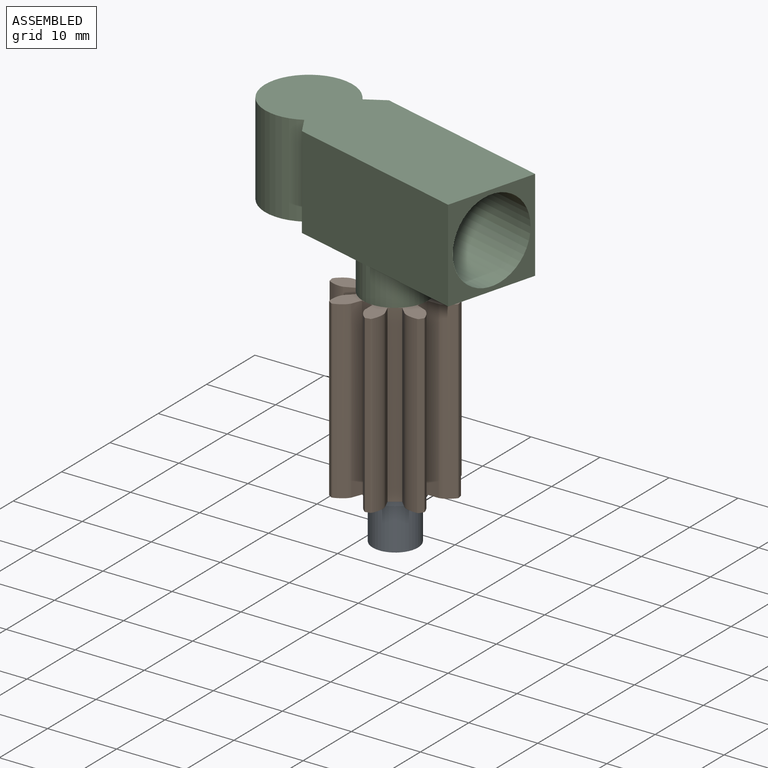
[diagram: assembled view]
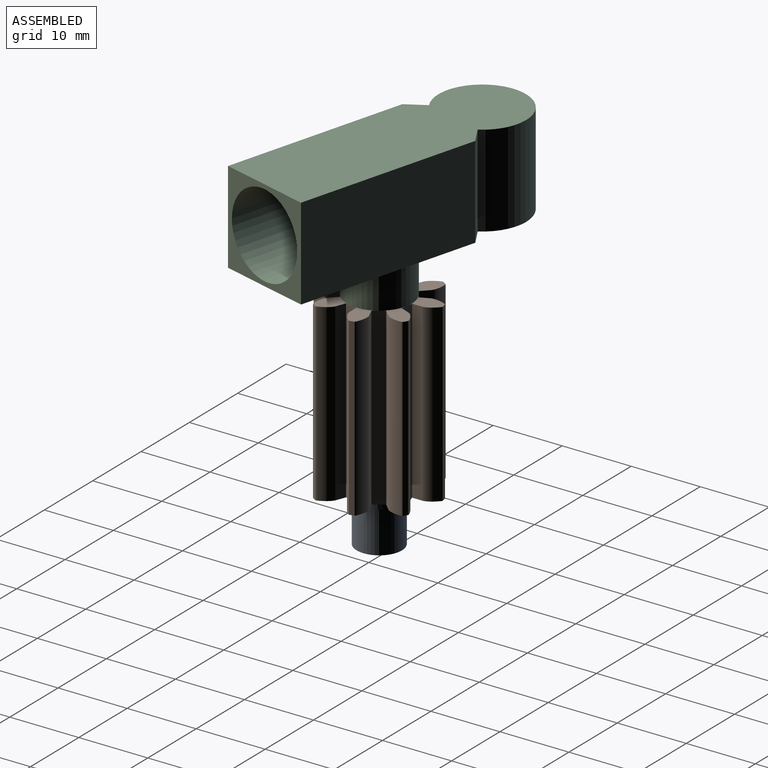
[diagram: assembled view, second angle]
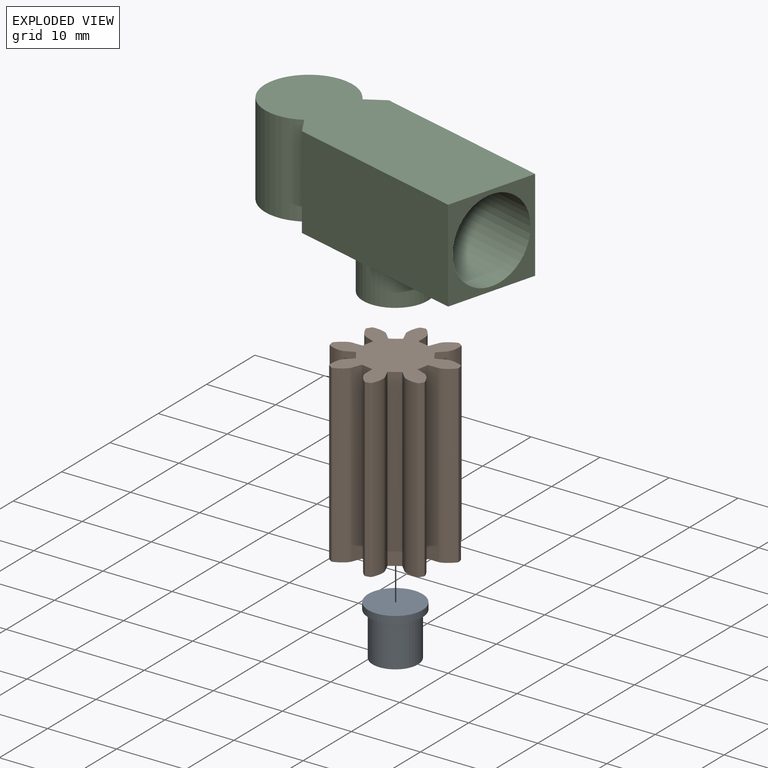
[diagram: exploded view]
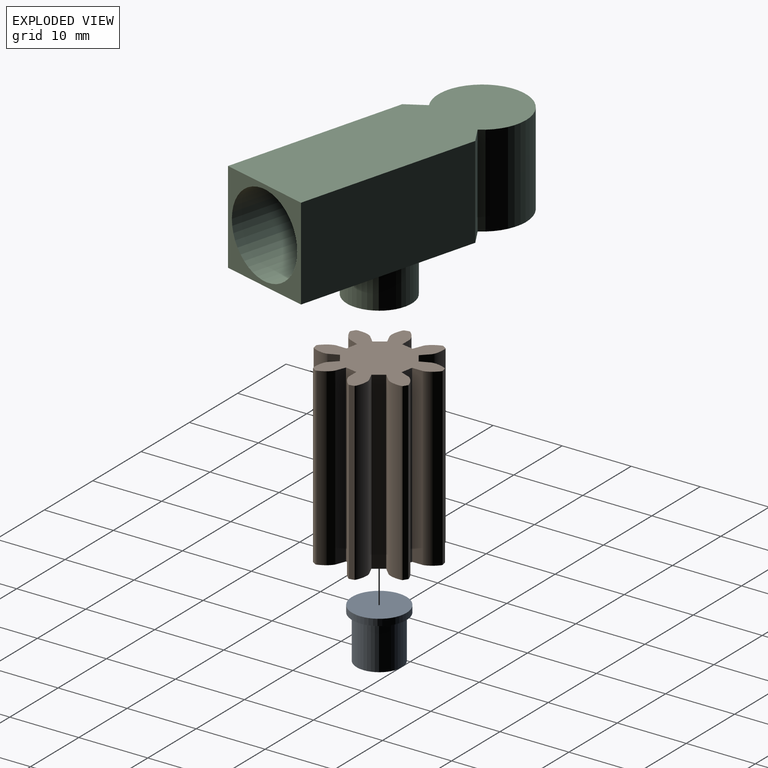
[diagram: exploded view, second angle]
ASSEMBLY  parts=3 mates=4
PART A: 5 faces, bbox 7.9x7.9x7.3 mm
  f0: cylinder r=3.28mm len=6.55mm, axis (0,0,-1), area 130.7mm2, adj f1,f4
  f1: plane 6.55x6.55mm, normal (0,0,-1), area 33.7mm2, adj f0
  f2: cylinder r=3.94mm len=7.87mm, axis (0,0,-1), area 23.6mm2, adj f3,f4
  f3: plane 7.87x7.87mm, normal (0,0,1), area 48.7mm2, adj f2
  f4: plane 7.87x7.87mm, normal (0,0,-1), area 15mm2, adj f0,f2
PART B: 342 faces, bbox 16.4x16.4x25.4 mm
  f0: plane 25.4x1.73mm, normal (0.98,-0.18,0), area 44.6mm2, adj f1,f339,f340,f341
  f1: plane 25.4x1.53mm, normal (0,-1,0), area 38.8mm2, adj f0,f2,f340,f341
  f2: plane 25.4x0.02mm, normal (0.09,-1,0), area 0.6mm2, adj f1,f3,f340,f341
  f3: plane 25.4x0.03mm, normal (0.15,-0.99,0), area 0.9mm2, adj f2,f4,f340,f341
  f4: plane 25.4x0.05mm, normal (0.17,-0.99,0), area 1.2mm2, adj f3,f5,f340,f341
  f5: plane 25.4x0.06mm, normal (0.21,-0.98,0), area 1.5mm2, adj f4,f6,f340,f341
  f6: plane 25.4x0.07mm, normal (0.26,-0.97,0), area 1.8mm2, adj f5,f7,f340,f341
  f7: plane 25.4x0.08mm, normal (0.3,-0.95,0), area 2.1mm2, adj f6,f8,f340,f341
  f8: plane 25.4x0.09mm, normal (0.33,-0.94,0), area 2.4mm2, adj f7,f9,f340,f341
  f9: plane 25.4x0.1mm, normal (0.38,-0.92,0), area 2.7mm2, adj f8,f10,f340,f341
  f10: plane 25.4x0.11mm, normal (0.42,-0.91,0), area 3mm2, adj f9,f11,f340,f341
  f11: plane 25.4x0.12mm, normal (0.46,-0.89,0), area 3.3mm2, adj f10,f12,f340,f341
  f12: plane 25.4x0.12mm, normal (0.49,-0.87,0), area 3.6mm2, adj f11,f13,f340,f341
  f13: plane 25.4x0.13mm, normal (0.53,-0.85,0), area 3.9mm2, adj f12,f14,f340,f341
  f14: plane 25.4x0.14mm, normal (0.57,-0.82,0), area 4.2mm2, adj f13,f15,f340,f341
  f15: plane 25.4x0.14mm, normal (0.6,-0.8,0), area 4.5mm2, adj f14,f16,f340,f341
  f16: plane 25.4x0.15mm, normal (0.64,-0.77,0), area 4.8mm2, adj f15,f17,f340,f341
  f17: plane 25.4x0.15mm, normal (0.67,-0.74,0), area 5.1mm2, adj f16,f18,f340,f341
  f18: plane 25.4x0.15mm, normal (0.7,-0.71,0), area 5.4mm2, adj f17,f19,f340,f341
  f19: plane 25.4x0.17mm, normal (0.73,-0.68,0), area 5.7mm2, adj f18,f20,f340,f341
  f20: plane 25.4x0.17mm, normal (0.87,-0.5,0), area 5.1mm2, adj f19,f21,f340,f341
  f21: plane 25.4x0.72mm, normal (0.98,0.21,0), area 18.7mm2, adj f20,f22,f340,f341
  f22: plane 25.4x0.16mm, normal (0.59,0.81,0), area 5.1mm2, adj f21,f23,f340,f341
  f23: plane 25.4x0.21mm, normal (0.4,0.92,0), area 5.7mm2, adj f22,f24,f340,f341
  f24: plane 25.4x0.2mm, normal (0.36,0.93,0), area 5.4mm2, adj f23,f25,f340,f341
  f25: plane 25.4x0.19mm, normal (0.32,0.95,0), area 5.1mm2, adj f24,f26,f340,f341
  f26: plane 25.4x0.18mm, normal (0.27,0.96,0), area 4.8mm2, adj f25,f27,f340,f341
  f27: plane 25.4x0.17mm, normal (0.24,0.97,0), area 4.5mm2, adj f26,f28,f340,f341
  f28: plane 25.4x0.16mm, normal (0.19,0.98,0), area 4.2mm2, adj f27,f29,f340,f341
  f29: plane 25.4x0.15mm, normal (0.15,0.99,0), area 3.9mm2, adj f28,f30,f340,f341
  f30: plane 25.4x0.14mm, normal (0.11,0.99,0), area 3.6mm2, adj f29,f31,f340,f341
  f31: plane 25.4x0.13mm, normal (0.06,1,0), area 3.3mm2, adj f30,f32,f340,f341
  f32: plane 25.4x0.12mm, normal (0.02,1,0), area 3mm2, adj f31,f33,f340,f341
  f33: plane 25.4x0.11mm, normal (-0.02,1,0), area 2.7mm2, adj f32,f34,f340,f341
  f34: plane 25.4x0.09mm, normal (-0.07,1,0), area 2.4mm2, adj f33,f35,f340,f341
  f35: plane 25.4x0.08mm, normal (-0.11,0.99,0), area 2.1mm2, adj f34,f36,f340,f341
  f36: plane 25.4x0.07mm, normal (-0.16,0.99,0), area 1.8mm2, adj f35,f37,f340,f341
  f37: plane 25.4x0.06mm, normal (-0.19,0.98,0), area 1.5mm2, adj f36,f38,f340,f341
  f38: plane 25.4x0.05mm, normal (-0.26,0.97,0), area 1.2mm2, adj f37,f39,f340,f341
  f39: plane 25.4x0.03mm, normal (-0.26,0.96,0), area 0.9mm2, adj f38,f40,f340,f341
  f40: plane 25.4x0.02mm, normal (-0.36,0.93,0), area 0.6mm2, adj f39,f41,f340,f341
  f41: plane 25.4x0.01mm, normal (-0.29,0.96,0), area 0.3mm2, adj f40,f42,f340,f341
  f42: plane 25.4x1.39mm, normal (-0.4,0.92,0), area 38.5mm2, adj f41,f43,f340,f341
  f43: plane 25.4x1.45mm, normal (0.83,0.56,0), area 44.6mm2, adj f42,f44,f340,f341
  f44: plane 25.4x1.08mm, normal (0.71,-0.71,0), area 38.8mm2, adj f43,f45,f340,f341
  f45: plane 25.4x0.05mm, normal (0.79,-0.61,0), area 1.4mm2, adj f44,f46,f340,f341
  f46: plane 25.4x0.04mm, normal (0.82,-0.58,0), area 1.2mm2, adj f45,f47,f340,f341
  f47: plane 25.4x0.05mm, normal (0.84,-0.55,0), area 1.5mm2, adj f46,f48,f340,f341
  f48: plane 25.4x0.06mm, normal (0.87,-0.5,0), area 1.8mm2, adj f47,f49,f340,f341
  f49: plane 25.4x0.07mm, normal (0.89,-0.46,0), area 2.1mm2, adj f48,f50,f340,f341
  f50: plane 25.4x0.09mm, normal (0.9,-0.43,0), area 2.4mm2, adj f49,f51,f340,f341
  f51: plane 25.4x0.1mm, normal (0.92,-0.39,0), area 2.7mm2, adj f50,f52,f340,f341
  f52: plane 25.4x0.11mm, normal (0.94,-0.34,0), area 3mm2, adj f51,f53,f340,f341
  f53: plane 25.4x0.12mm, normal (0.95,-0.31,0), area 3.3mm2, adj f52,f54,f340,f341
  f54: plane 25.4x0.14mm, normal (0.97,-0.26,0), area 3.6mm2, adj f53,f55,f340,f341
  f55: plane 25.4x0.15mm, normal (0.98,-0.22,0), area 3.9mm2, adj f54,f56,f340,f341
  f56: plane 25.4x0.16mm, normal (0.98,-0.18,0), area 4.2mm2, adj f55,f57,f340,f341
  f57: plane 25.4x0.18mm, normal (0.99,-0.14,0), area 4.5mm2, adj f56,f58,f340,f341
  f58: plane 25.4x0.19mm, normal (1,-0.09,0), area 4.8mm2, adj f57,f59,f340,f341
  f59: plane 25.4x0.2mm, normal (1,-0.05,0), area 5.1mm2, adj f58,f60,f340,f341
  f60: plane 25.4x0.21mm, normal (1,0,0), area 5.4mm2, adj f59,f61,f340,f341
  f61: plane 25.4x0.23mm, normal (1,0.04,0), area 5.7mm2, adj f60,f62,f340,f341
  f62: plane 25.4x0.19mm, normal (0.97,0.26,0), area 5.1mm2, adj f61,f63,f340,f341
  f63: plane 25.4x0.62mm, normal (0.55,0.84,0), area 18.7mm2, adj f62,f64,f340,f341
  f64: plane 25.4x0.2mm, normal (-0.16,0.99,0), area 5.1mm2, adj f63,f65,f340,f341
  f65: plane 25.4x0.21mm, normal (-0.37,0.93,0), area 5.7mm2, adj f64,f66,f340,f341
  f66: plane 25.4x0.2mm, normal (-0.4,0.91,0), area 5.4mm2, adj f65,f67,f340,f341
  f67: plane 25.4x0.18mm, normal (-0.45,0.89,0), area 5.1mm2, adj f66,f68,f340,f341
  f68: plane 25.4x0.17mm, normal (-0.48,0.87,0), area 4.8mm2, adj f67,f69,f340,f341
  f69: plane 25.4x0.15mm, normal (-0.52,0.85,0), area 4.5mm2, adj f68,f70,f340,f341
  f70: plane 25.4x0.14mm, normal (-0.55,0.83,0), area 4.2mm2, adj f69,f71,f340,f341
  f71: plane 25.4x0.12mm, normal (-0.6,0.8,0), area 3.9mm2, adj f70,f72,f340,f341
  f72: plane 25.4x0.11mm, normal (-0.63,0.78,0), area 3.6mm2, adj f71,f73,f340,f341
  f73: plane 25.4x0.1mm, normal (-0.66,0.75,0), area 3.3mm2, adj f72,f74,f340,f341
  f74: plane 25.4x0.09mm, normal (-0.69,0.72,0), area 3mm2, adj f73,f75,f340,f341
  f75: plane 25.4x0.08mm, normal (-0.73,0.69,0), area 2.7mm2, adj f74,f76,f340,f341
  f76: plane 25.4x0.07mm, normal (-0.75,0.66,0), area 2.4mm2, adj f75,f77,f340,f341
  f77: plane 25.4x0.06mm, normal (-0.78,0.62,0), area 2.1mm2, adj f76,f78,f340,f341
  f78: plane 25.4x0.06mm, normal (-0.81,0.59,0), area 1.8mm2, adj f77,f79,f340,f341
  f79: plane 25.4x0.05mm, normal (-0.84,0.55,0), area 1.5mm2, adj f78,f80,f340,f341
  f80: plane 25.4x0.04mm, normal (-0.85,0.52,0), area 1.2mm2, adj f79,f81,f340,f341
  f81: plane 25.4x0.03mm, normal (-0.88,0.48,0), area 0.9mm2, adj f80,f82,f340,f341
  f82: plane 25.4x0.02mm, normal (-0.89,0.45,0), area 0.6mm2, adj f81,f83,f340,f341
  f83: plane 25.4x0.01mm, normal (-0.93,0.37,0), area 0.3mm2, adj f82,f84,f340,f341
  f84: plane 25.4x1.41mm, normal (-0.93,0.36,0), area 38.5mm2, adj f83,f85,f340,f341
  f85: plane 25.4x1.73mm, normal (0.18,0.98,0), area 44.6mm2, adj f84,f86,f340,f341
  f86: plane 25.4x1.53mm, normal (1,0,0), area 38.8mm2, adj f85,f87,f340,f341
  f87: plane 25.4x0.02mm, normal (1,0.09,0), area 0.6mm2, adj f86,f88,f340,f341
  f88: plane 25.4x0.03mm, normal (0.99,0.15,0), area 0.9mm2, adj f87,f89,f340,f341
  f89: plane 25.4x0.05mm, normal (0.99,0.17,0), area 1.2mm2, adj f88,f90,f340,f341
  f90: plane 25.4x0.06mm, normal (0.98,0.21,0), area 1.5mm2, adj f89,f91,f340,f341
  f91: plane 25.4x0.07mm, normal (0.97,0.26,0), area 1.8mm2, adj f90,f92,f340,f341
  f92: plane 25.4x0.08mm, normal (0.95,0.3,0), area 2.1mm2, adj f91,f93,f340,f341
  f93: plane 25.4x0.09mm, normal (0.94,0.33,0), area 2.4mm2, adj f92,f94,f340,f341
  f94: plane 25.4x0.1mm, normal (0.92,0.38,0), area 2.7mm2, adj f93,f95,f340,f341
  f95: plane 25.4x0.11mm, normal (0.91,0.42,0), area 3mm2, adj f94,f96,f340,f341
  f96: plane 25.4x0.12mm, normal (0.89,0.46,0), area 3.3mm2, adj f95,f97,f340,f341
  f97: plane 25.4x0.12mm, normal (0.87,0.49,0), area 3.6mm2, adj f96,f98,f340,f341
  f98: plane 25.4x0.13mm, normal (0.85,0.53,0), area 3.9mm2, adj f97,f99,f340,f341
  f99: plane 25.4x0.14mm, normal (0.82,0.57,0), area 4.2mm2, adj f98,f100,f340,f341
  f100: plane 25.4x0.14mm, normal (0.8,0.6,0), area 4.5mm2, adj f99,f101,f340,f341
  f101: plane 25.4x0.15mm, normal (0.77,0.64,0), area 4.8mm2, adj f100,f102,f340,f341
  f102: plane 25.4x0.15mm, normal (0.74,0.67,0), area 5.1mm2, adj f101,f103,f340,f341
  f103: plane 25.4x0.15mm, normal (0.71,0.7,0), area 5.4mm2, adj f102,f104,f340,f341
  f104: plane 25.4x0.17mm, normal (0.68,0.73,0), area 5.7mm2, adj f103,f105,f340,f341
  f105: plane 25.4x0.17mm, normal (0.5,0.87,0), area 5.1mm2, adj f104,f106,f340,f341
  f106: plane 25.4x0.72mm, normal (-0.21,0.98,0), area 18.7mm2, adj f105,f107,f340,f341
  f107: plane 25.4x0.16mm, normal (-0.81,0.59,0), area 5.1mm2, adj f106,f108,f340,f341
  f108: plane 25.4x0.21mm, normal (-0.92,0.4,0), area 5.7mm2, adj f107,f109,f340,f341
  f109: plane 25.4x0.2mm, normal (-0.93,0.36,0), area 5.4mm2, adj f108,f110,f340,f341
  f110: plane 25.4x0.19mm, normal (-0.95,0.32,0), area 5.1mm2, adj f109,f111,f340,f341
  f111: plane 25.4x0.18mm, normal (-0.96,0.27,0), area 4.8mm2, adj f110,f112,f340,f341
  f112: plane 25.4x0.17mm, normal (-0.97,0.24,0), area 4.5mm2, adj f111,f113,f340,f341
  f113: plane 25.4x0.16mm, normal (-0.98,0.19,0), area 4.2mm2, adj f112,f114,f340,f341
  f114: plane 25.4x0.15mm, normal (-0.99,0.15,0), area 3.9mm2, adj f113,f115,f340,f341
  f115: plane 25.4x0.14mm, normal (-0.99,0.11,0), area 3.6mm2, adj f114,f116,f340,f341
  f116: plane 25.4x0.13mm, normal (-1,0.06,0), area 3.3mm2, adj f115,f117,f340,f341
  f117: plane 25.4x0.12mm, normal (-1,0.02,0), area 3mm2, adj f116,f118,f340,f341
  f118: plane 25.4x0.11mm, normal (-1,-0.02,0), area 2.7mm2, adj f117,f119,f340,f341
  f119: plane 25.4x0.09mm, normal (-1,-0.07,0), area 2.4mm2, adj f118,f120,f340,f341
  f120: plane 25.4x0.08mm, normal (-0.99,-0.11,0), area 2.1mm2, adj f119,f121,f340,f341
  f121: plane 25.4x0.07mm, normal (-0.99,-0.16,0), area 1.8mm2, adj f120,f122,f340,f341
  f122: plane 25.4x0.06mm, normal (-0.98,-0.19,0), area 1.5mm2, adj f121,f123,f340,f341
  f123: plane 25.4x0.05mm, normal (-0.97,-0.26,0), area 1.2mm2, adj f122,f124,f340,f341
  f124: plane 25.4x0.03mm, normal (-0.96,-0.26,0), area 0.9mm2, adj f123,f125,f340,f341
  f125: plane 25.4x0.02mm, normal (-0.93,-0.36,0), area 0.6mm2, adj f124,f126,f340,f341
  f126: plane 25.4x0.01mm, normal (-0.96,-0.29,0), area 0.3mm2, adj f125,f127,f340,f341
  f127: plane 25.4x1.39mm, normal (-0.92,-0.4,0), area 38.5mm2, adj f126,f128,f340,f341
  f128: plane 25.4x1.45mm, normal (-0.56,0.83,0), area 44.6mm2, adj f127,f129,f340,f341
  f129: plane 25.4x1.08mm, normal (0.71,0.71,0), area 38.8mm2, adj f128,f130,f340,f341
  f130: plane 25.4x0.05mm, normal (0.61,0.79,0), area 1.4mm2, adj f129,f131,f340,f341
  f131: plane 25.4x0.04mm, normal (0.58,0.82,0), area 1.2mm2, adj f130,f132,f340,f341
  f132: plane 25.4x0.05mm, normal (0.55,0.84,0), area 1.5mm2, adj f131,f133,f340,f341
  f133: plane 25.4x0.06mm, normal (0.5,0.87,0), area 1.8mm2, adj f132,f134,f340,f341
  f134: plane 25.4x0.07mm, normal (0.46,0.89,0), area 2.1mm2, adj f133,f135,f340,f341
  f135: plane 25.4x0.09mm, normal (0.43,0.9,0), area 2.4mm2, adj f134,f136,f340,f341
  f136: plane 25.4x0.1mm, normal (0.39,0.92,0), area 2.7mm2, adj f135,f137,f340,f341
  f137: plane 25.4x0.11mm, normal (0.34,0.94,0), area 3mm2, adj f136,f138,f340,f341
  f138: plane 25.4x0.12mm, normal (0.31,0.95,0), area 3.3mm2, adj f137,f139,f340,f341
  f139: plane 25.4x0.14mm, normal (0.26,0.97,0), area 3.6mm2, adj f138,f140,f340,f341
  f140: plane 25.4x0.15mm, normal (0.22,0.98,0), area 3.9mm2, adj f139,f141,f340,f341
  f141: plane 25.4x0.16mm, normal (0.18,0.98,0), area 4.2mm2, adj f140,f142,f340,f341
  f142: plane 25.4x0.18mm, normal (0.14,0.99,0), area 4.5mm2, adj f141,f143,f340,f341
  f143: plane 25.4x0.19mm, normal (0.09,1,0), area 4.8mm2, adj f142,f144,f340,f341
  f144: plane 25.4x0.2mm, normal (0.05,1,0), area 5.1mm2, adj f143,f145,f340,f341
  f145: plane 25.4x0.21mm, normal (0,1,0), area 5.4mm2, adj f144,f146,f340,f341
  f146: plane 25.4x0.23mm, normal (-0.04,1,0), area 5.7mm2, adj f145,f147,f340,f341
  f147: plane 25.4x0.19mm, normal (-0.26,0.97,0), area 5.1mm2, adj f146,f148,f340,f341
  f148: plane 25.4x0.62mm, normal (-0.84,0.55,0), area 18.7mm2, adj f147,f149,f340,f341
  f149: plane 25.4x0.2mm, normal (-0.99,-0.16,0), area 5.1mm2, adj f148,f150,f340,f341
  f150: plane 25.4x0.21mm, normal (-0.93,-0.37,0), area 5.7mm2, adj f149,f151,f340,f341
  f151: plane 25.4x0.2mm, normal (-0.91,-0.4,0), area 5.4mm2, adj f150,f152,f340,f341
  f152: plane 25.4x0.18mm, normal (-0.89,-0.45,0), area 5.1mm2, adj f151,f153,f340,f341
  f153: plane 25.4x0.17mm, normal (-0.87,-0.48,0), area 4.8mm2, adj f152,f154,f340,f341
  f154: plane 25.4x0.15mm, normal (-0.85,-0.52,0), area 4.5mm2, adj f153,f155,f340,f341
  f155: plane 25.4x0.14mm, normal (-0.83,-0.55,0), area 4.2mm2, adj f154,f156,f340,f341
  f156: plane 25.4x0.12mm, normal (-0.8,-0.6,0), area 3.9mm2, adj f155,f157,f340,f341
  f157: plane 25.4x0.11mm, normal (-0.78,-0.63,0), area 3.6mm2, adj f156,f158,f340,f341
  f158: plane 25.4x0.1mm, normal (-0.75,-0.66,0), area 3.3mm2, adj f157,f159,f340,f341
  f159: plane 25.4x0.09mm, normal (-0.72,-0.69,0), area 3mm2, adj f158,f160,f340,f341
  f160: plane 25.4x0.08mm, normal (-0.69,-0.73,0), area 2.7mm2, adj f159,f161,f340,f341
  f161: plane 25.4x0.07mm, normal (-0.66,-0.75,0), area 2.4mm2, adj f160,f162,f340,f341
  f162: plane 25.4x0.06mm, normal (-0.62,-0.78,0), area 2.1mm2, adj f161,f163,f340,f341
  f163: plane 25.4x0.06mm, normal (-0.59,-0.81,0), area 1.8mm2, adj f162,f164,f340,f341
  f164: plane 25.4x0.05mm, normal (-0.55,-0.84,0), area 1.5mm2, adj f163,f165,f340,f341
  f165: plane 25.4x0.04mm, normal (-0.52,-0.85,0), area 1.2mm2, adj f164,f166,f340,f341
  f166: plane 25.4x0.03mm, normal (-0.48,-0.88,0), area 0.9mm2, adj f165,f167,f340,f341
  f167: plane 25.4x0.02mm, normal (-0.45,-0.89,0), area 0.6mm2, adj f166,f168,f340,f341
  f168: plane 25.4x0.01mm, normal (-0.37,-0.93,0), area 0.3mm2, adj f167,f169,f340,f341
  f169: plane 25.4x1.41mm, normal (-0.36,-0.93,0), area 38.5mm2, adj f168,f170,f340,f341
  f170: plane 25.4x1.73mm, normal (-0.98,0.18,0), area 44.6mm2, adj f169,f171,f340,f341
  f171: plane 25.4x1.53mm, normal (0,1,0), area 38.8mm2, adj f170,f172,f340,f341
  f172: plane 25.4x0.02mm, normal (-0.09,1,0), area 0.6mm2, adj f171,f173,f340,f341
  f173: plane 25.4x0.03mm, normal (-0.15,0.99,0), area 0.9mm2, adj f172,f174,f340,f341
  f174: plane 25.4x0.05mm, normal (-0.17,0.99,0), area 1.2mm2, adj f173,f175,f340,f341
  f175: plane 25.4x0.06mm, normal (-0.21,0.98,0), area 1.5mm2, adj f174,f176,f340,f341
  f176: plane 25.4x0.07mm, normal (-0.26,0.97,0), area 1.8mm2, adj f175,f177,f340,f341
  f177: plane 25.4x0.08mm, normal (-0.3,0.95,0), area 2.1mm2, adj f176,f178,f340,f341
  f178: plane 25.4x0.09mm, normal (-0.33,0.94,0), area 2.4mm2, adj f177,f179,f340,f341
  f179: plane 25.4x0.1mm, normal (-0.38,0.92,0), area 2.7mm2, adj f178,f180,f340,f341
  f180: plane 25.4x0.11mm, normal (-0.42,0.91,0), area 3mm2, adj f179,f181,f340,f341
  f181: plane 25.4x0.12mm, normal (-0.46,0.89,0), area 3.3mm2, adj f180,f182,f340,f341
  f182: plane 25.4x0.12mm, normal (-0.49,0.87,0), area 3.6mm2, adj f181,f183,f340,f341
  f183: plane 25.4x0.13mm, normal (-0.53,0.85,0), area 3.9mm2, adj f182,f184,f340,f341
  f184: plane 25.4x0.14mm, normal (-0.57,0.82,0), area 4.2mm2, adj f183,f185,f340,f341
  f185: plane 25.4x0.14mm, normal (-0.6,0.8,0), area 4.5mm2, adj f184,f186,f340,f341
  f186: plane 25.4x0.15mm, normal (-0.64,0.77,0), area 4.8mm2, adj f185,f187,f340,f341
  f187: plane 25.4x0.15mm, normal (-0.67,0.74,0), area 5.1mm2, adj f186,f188,f340,f341
  f188: plane 25.4x0.15mm, normal (-0.7,0.71,0), area 5.4mm2, adj f187,f189,f340,f341
  f189: plane 25.4x0.17mm, normal (-0.73,0.68,0), area 5.7mm2, adj f188,f190,f340,f341
  f190: plane 25.4x0.17mm, normal (-0.87,0.5,0), area 5.1mm2, adj f189,f191,f340,f341
  f191: plane 25.4x0.72mm, normal (-0.98,-0.21,0), area 18.7mm2, adj f190,f192,f340,f341
  f192: plane 25.4x0.16mm, normal (-0.59,-0.81,0), area 5.1mm2, adj f191,f193,f340,f341
  f193: plane 25.4x0.21mm, normal (-0.4,-0.92,0), area 5.7mm2, adj f192,f194,f340,f341
  f194: plane 25.4x0.2mm, normal (-0.36,-0.93,0), area 5.4mm2, adj f193,f195,f340,f341
  f195: plane 25.4x0.19mm, normal (-0.32,-0.95,0), area 5.1mm2, adj f194,f196,f340,f341
  f196: plane 25.4x0.18mm, normal (-0.27,-0.96,0), area 4.8mm2, adj f195,f197,f340,f341
  f197: plane 25.4x0.17mm, normal (-0.24,-0.97,0), area 4.5mm2, adj f196,f198,f340,f341
  f198: plane 25.4x0.16mm, normal (-0.19,-0.98,0), area 4.2mm2, adj f197,f199,f340,f341
  f199: plane 25.4x0.15mm, normal (-0.15,-0.99,0), area 3.9mm2, adj f198,f200,f340,f341
  f200: plane 25.4x0.14mm, normal (-0.11,-0.99,0), area 3.6mm2, adj f199,f201,f340,f341
  f201: plane 25.4x0.13mm, normal (-0.06,-1,0), area 3.3mm2, adj f200,f202,f340,f341
  f202: plane 25.4x0.12mm, normal (-0.02,-1,0), area 3mm2, adj f201,f203,f340,f341
  f203: plane 25.4x0.11mm, normal (0.02,-1,0), area 2.7mm2, adj f202,f204,f340,f341
  f204: plane 25.4x0.09mm, normal (0.07,-1,0), area 2.4mm2, adj f203,f205,f340,f341
  f205: plane 25.4x0.08mm, normal (0.11,-0.99,0), area 2.1mm2, adj f204,f206,f340,f341
  f206: plane 25.4x0.07mm, normal (0.16,-0.99,0), area 1.8mm2, adj f205,f207,f340,f341
  f207: plane 25.4x0.06mm, normal (0.19,-0.98,0), area 1.5mm2, adj f206,f208,f340,f341
  f208: plane 25.4x0.05mm, normal (0.26,-0.97,0), area 1.2mm2, adj f207,f209,f340,f341
  f209: plane 25.4x0.03mm, normal (0.26,-0.96,0), area 0.9mm2, adj f208,f210,f340,f341
  f210: plane 25.4x0.02mm, normal (0.36,-0.93,0), area 0.6mm2, adj f209,f211,f340,f341
  f211: plane 25.4x0.01mm, normal (0.29,-0.96,0), area 0.3mm2, adj f210,f212,f340,f341
  f212: plane 25.4x1.39mm, normal (0.4,-0.92,0), area 38.5mm2, adj f211,f213,f340,f341
  f213: plane 25.4x1.45mm, normal (-0.83,-0.56,0), area 44.6mm2, adj f212,f214,f340,f341
  f214: plane 25.4x1.08mm, normal (-0.71,0.71,0), area 38.8mm2, adj f213,f215,f340,f341
  f215: plane 25.4x0.05mm, normal (-0.79,0.61,0), area 1.4mm2, adj f214,f216,f340,f341
  f216: plane 25.4x0.04mm, normal (-0.82,0.58,0), area 1.2mm2, adj f215,f217,f340,f341
  f217: plane 25.4x0.05mm, normal (-0.84,0.55,0), area 1.5mm2, adj f216,f218,f340,f341
  f218: plane 25.4x0.06mm, normal (-0.87,0.5,0), area 1.8mm2, adj f217,f219,f340,f341
  f219: plane 25.4x0.07mm, normal (-0.89,0.46,0), area 2.1mm2, adj f218,f220,f340,f341
  f220: plane 25.4x0.09mm, normal (-0.9,0.43,0), area 2.4mm2, adj f219,f221,f340,f341
  f221: plane 25.4x0.1mm, normal (-0.92,0.39,0), area 2.7mm2, adj f220,f222,f340,f341
  f222: plane 25.4x0.11mm, normal (-0.94,0.34,0), area 3mm2, adj f221,f223,f340,f341
  f223: plane 25.4x0.12mm, normal (-0.95,0.31,0), area 3.3mm2, adj f222,f224,f340,f341
  f224: plane 25.4x0.14mm, normal (-0.97,0.26,0), area 3.6mm2, adj f223,f225,f340,f341
  f225: plane 25.4x0.15mm, normal (-0.98,0.22,0), area 3.9mm2, adj f224,f226,f340,f341
  f226: plane 25.4x0.16mm, normal (-0.98,0.18,0), area 4.2mm2, adj f225,f227,f340,f341
  f227: plane 25.4x0.18mm, normal (-0.99,0.14,0), area 4.5mm2, adj f226,f228,f340,f341
  f228: plane 25.4x0.19mm, normal (-1,0.09,0), area 4.8mm2, adj f227,f229,f340,f341
  f229: plane 25.4x0.2mm, normal (-1,0.05,0), area 5.1mm2, adj f228,f230,f340,f341
  f230: plane 25.4x0.21mm, normal (-1,0,0), area 5.4mm2, adj f229,f231,f340,f341
  f231: plane 25.4x0.23mm, normal (-1,-0.04,0), area 5.7mm2, adj f230,f232,f340,f341
  f232: plane 25.4x0.19mm, normal (-0.97,-0.26,0), area 5.1mm2, adj f231,f233,f340,f341
  f233: plane 25.4x0.62mm, normal (-0.55,-0.84,0), area 18.7mm2, adj f232,f234,f340,f341
  f234: plane 25.4x0.2mm, normal (0.16,-0.99,0), area 5.1mm2, adj f233,f235,f340,f341
  f235: plane 25.4x0.21mm, normal (0.37,-0.93,0), area 5.7mm2, adj f234,f236,f340,f341
  f236: plane 25.4x0.2mm, normal (0.4,-0.91,0), area 5.4mm2, adj f235,f237,f340,f341
  f237: plane 25.4x0.18mm, normal (0.45,-0.89,0), area 5.1mm2, adj f236,f238,f340,f341
  f238: plane 25.4x0.17mm, normal (0.48,-0.87,0), area 4.8mm2, adj f237,f239,f340,f341
  f239: plane 25.4x0.15mm, normal (0.52,-0.85,0), area 4.5mm2, adj f238,f240,f340,f341
  f240: plane 25.4x0.14mm, normal (0.55,-0.83,0), area 4.2mm2, adj f239,f241,f340,f341
  f241: plane 25.4x0.12mm, normal (0.6,-0.8,0), area 3.9mm2, adj f240,f242,f340,f341
  f242: plane 25.4x0.11mm, normal (0.63,-0.78,0), area 3.6mm2, adj f241,f243,f340,f341
  f243: plane 25.4x0.1mm, normal (0.66,-0.75,0), area 3.3mm2, adj f242,f244,f340,f341
  f244: plane 25.4x0.09mm, normal (0.69,-0.72,0), area 3mm2, adj f243,f245,f340,f341
  f245: plane 25.4x0.08mm, normal (0.73,-0.69,0), area 2.7mm2, adj f244,f246,f340,f341
  f246: plane 25.4x0.07mm, normal (0.75,-0.66,0), area 2.4mm2, adj f245,f247,f340,f341
  f247: plane 25.4x0.06mm, normal (0.78,-0.62,0), area 2.1mm2, adj f246,f248,f340,f341
  f248: plane 25.4x0.06mm, normal (0.81,-0.59,0), area 1.8mm2, adj f247,f249,f340,f341
  f249: plane 25.4x0.05mm, normal (0.84,-0.55,0), area 1.5mm2, adj f248,f250,f340,f341
  f250: plane 25.4x0.04mm, normal (0.85,-0.52,0), area 1.2mm2, adj f249,f251,f340,f341
  f251: plane 25.4x0.03mm, normal (0.88,-0.48,0), area 0.9mm2, adj f250,f252,f340,f341
  f252: plane 25.4x0.02mm, normal (0.89,-0.45,0), area 0.6mm2, adj f251,f253,f340,f341
  f253: plane 25.4x0.01mm, normal (0.93,-0.37,0), area 0.3mm2, adj f252,f254,f340,f341
  f254: plane 25.4x1.41mm, normal (0.93,-0.36,0), area 38.5mm2, adj f253,f255,f340,f341
  f255: plane 25.4x1.73mm, normal (-0.18,-0.98,0), area 44.6mm2, adj f254,f256,f340,f341
  f256: plane 25.4x1.53mm, normal (-1,0,0), area 38.8mm2, adj f255,f257,f340,f341
  f257: plane 25.4x0.02mm, normal (-1,-0.09,0), area 0.6mm2, adj f256,f258,f340,f341
  f258: plane 25.4x0.03mm, normal (-0.99,-0.15,0), area 0.9mm2, adj f257,f259,f340,f341
  f259: plane 25.4x0.05mm, normal (-0.99,-0.17,0), area 1.2mm2, adj f258,f260,f340,f341
  f260: plane 25.4x0.06mm, normal (-0.98,-0.21,0), area 1.5mm2, adj f259,f261,f340,f341
  f261: plane 25.4x0.07mm, normal (-0.97,-0.26,0), area 1.8mm2, adj f260,f262,f340,f341
  f262: plane 25.4x0.08mm, normal (-0.95,-0.3,0), area 2.1mm2, adj f261,f263,f340,f341
  f263: plane 25.4x0.09mm, normal (-0.94,-0.33,0), area 2.4mm2, adj f262,f264,f340,f341
  f264: plane 25.4x0.1mm, normal (-0.92,-0.38,0), area 2.7mm2, adj f263,f265,f340,f341
  f265: plane 25.4x0.11mm, normal (-0.91,-0.42,0), area 3mm2, adj f264,f266,f340,f341
  f266: plane 25.4x0.12mm, normal (-0.89,-0.46,0), area 3.3mm2, adj f265,f267,f340,f341
  f267: plane 25.4x0.12mm, normal (-0.87,-0.49,0), area 3.6mm2, adj f266,f268,f340,f341
  f268: plane 25.4x0.13mm, normal (-0.85,-0.53,0), area 3.9mm2, adj f267,f269,f340,f341
  f269: plane 25.4x0.14mm, normal (-0.82,-0.57,0), area 4.2mm2, adj f268,f270,f340,f341
  f270: plane 25.4x0.14mm, normal (-0.8,-0.6,0), area 4.5mm2, adj f269,f271,f340,f341
  f271: plane 25.4x0.15mm, normal (-0.77,-0.64,0), area 4.8mm2, adj f270,f272,f340,f341
  f272: plane 25.4x0.15mm, normal (-0.74,-0.67,0), area 5.1mm2, adj f271,f273,f340,f341
  f273: plane 25.4x0.15mm, normal (-0.71,-0.7,0), area 5.4mm2, adj f272,f274,f340,f341
  f274: plane 25.4x0.17mm, normal (-0.68,-0.73,0), area 5.7mm2, adj f273,f275,f340,f341
  f275: plane 25.4x0.17mm, normal (-0.5,-0.87,0), area 5.1mm2, adj f274,f276,f340,f341
  f276: plane 25.4x0.72mm, normal (0.21,-0.98,0), area 18.7mm2, adj f275,f277,f340,f341
  f277: plane 25.4x0.16mm, normal (0.81,-0.59,0), area 5.1mm2, adj f276,f278,f340,f341
  f278: plane 25.4x0.21mm, normal (0.92,-0.4,0), area 5.7mm2, adj f277,f279,f340,f341
  f279: plane 25.4x0.2mm, normal (0.93,-0.36,0), area 5.4mm2, adj f278,f280,f340,f341
  f280: plane 25.4x0.19mm, normal (0.95,-0.32,0), area 5.1mm2, adj f279,f281,f340,f341
  f281: plane 25.4x0.18mm, normal (0.96,-0.27,0), area 4.8mm2, adj f280,f282,f340,f341
  f282: plane 25.4x0.17mm, normal (0.97,-0.24,0), area 4.5mm2, adj f281,f283,f340,f341
  f283: plane 25.4x0.16mm, normal (0.98,-0.19,0), area 4.2mm2, adj f282,f284,f340,f341
  f284: plane 25.4x0.15mm, normal (0.99,-0.15,0), area 3.9mm2, adj f283,f285,f340,f341
  f285: plane 25.4x0.14mm, normal (0.99,-0.11,0), area 3.6mm2, adj f284,f286,f340,f341
  f286: plane 25.4x0.13mm, normal (1,-0.06,0), area 3.3mm2, adj f285,f287,f340,f341
  f287: plane 25.4x0.12mm, normal (1,-0.02,0), area 3mm2, adj f286,f288,f340,f341
  f288: plane 25.4x0.11mm, normal (1,0.02,0), area 2.7mm2, adj f287,f289,f340,f341
  f289: plane 25.4x0.09mm, normal (1,0.07,0), area 2.4mm2, adj f288,f290,f340,f341
  f290: plane 25.4x0.08mm, normal (0.99,0.11,0), area 2.1mm2, adj f289,f291,f340,f341
  f291: plane 25.4x0.07mm, normal (0.99,0.16,0), area 1.8mm2, adj f290,f292,f340,f341
  f292: plane 25.4x0.06mm, normal (0.98,0.19,0), area 1.5mm2, adj f291,f293,f340,f341
  f293: plane 25.4x0.05mm, normal (0.97,0.26,0), area 1.2mm2, adj f292,f294,f340,f341
  f294: plane 25.4x0.03mm, normal (0.96,0.26,0), area 0.9mm2, adj f293,f295,f340,f341
  f295: plane 25.4x0.02mm, normal (0.93,0.36,0), area 0.6mm2, adj f294,f296,f340,f341
  f296: plane 25.4x0.01mm, normal (0.96,0.29,0), area 0.3mm2, adj f295,f297,f340,f341
  f297: plane 25.4x1.39mm, normal (0.92,0.4,0), area 38.5mm2, adj f296,f298,f340,f341
  f298: plane 25.4x1.45mm, normal (0.56,-0.83,0), area 44.6mm2, adj f297,f299,f340,f341
  f299: plane 25.4x1.08mm, normal (-0.71,-0.71,0), area 38.8mm2, adj f298,f300,f340,f341
  f300: plane 25.4x0.05mm, normal (-0.61,-0.79,0), area 1.4mm2, adj f299,f301,f340,f341
  f301: plane 25.4x0.04mm, normal (-0.58,-0.82,0), area 1.2mm2, adj f300,f302,f340,f341
  f302: plane 25.4x0.05mm, normal (-0.55,-0.84,0), area 1.5mm2, adj f301,f303,f340,f341
  f303: plane 25.4x0.06mm, normal (-0.5,-0.87,0), area 1.8mm2, adj f302,f304,f340,f341
  f304: plane 25.4x0.07mm, normal (-0.46,-0.89,0), area 2.1mm2, adj f303,f305,f340,f341
  f305: plane 25.4x0.09mm, normal (-0.43,-0.9,0), area 2.4mm2, adj f304,f306,f340,f341
  f306: plane 25.4x0.1mm, normal (-0.39,-0.92,0), area 2.7mm2, adj f305,f307,f340,f341
  f307: plane 25.4x0.11mm, normal (-0.34,-0.94,0), area 3mm2, adj f306,f308,f340,f341
  f308: plane 25.4x0.12mm, normal (-0.31,-0.95,0), area 3.3mm2, adj f307,f309,f340,f341
  f309: plane 25.4x0.14mm, normal (-0.26,-0.97,0), area 3.6mm2, adj f308,f310,f340,f341
  f310: plane 25.4x0.15mm, normal (-0.22,-0.98,0), area 3.9mm2, adj f309,f311,f340,f341
  f311: plane 25.4x0.16mm, normal (-0.18,-0.98,0), area 4.2mm2, adj f310,f312,f340,f341
  f312: plane 25.4x0.18mm, normal (-0.14,-0.99,0), area 4.5mm2, adj f311,f313,f340,f341
  f313: plane 25.4x0.19mm, normal (-0.09,-1,0), area 4.8mm2, adj f312,f314,f340,f341
  f314: plane 25.4x0.2mm, normal (-0.05,-1,0), area 5.1mm2, adj f313,f315,f340,f341
  f315: plane 25.4x0.21mm, normal (0,-1,0), area 5.4mm2, adj f314,f316,f340,f341
  f316: plane 25.4x0.23mm, normal (0.04,-1,0), area 5.7mm2, adj f315,f317,f340,f341
  f317: plane 25.4x0.19mm, normal (0.26,-0.97,0), area 5.1mm2, adj f316,f318,f340,f341
  f318: plane 25.4x0.62mm, normal (0.84,-0.55,0), area 18.7mm2, adj f317,f319,f340,f341
  f319: plane 25.4x0.2mm, normal (0.99,0.16,0), area 5.1mm2, adj f318,f320,f340,f341
  f320: plane 25.4x0.21mm, normal (0.93,0.37,0), area 5.7mm2, adj f319,f321,f340,f341
  f321: plane 25.4x0.2mm, normal (0.91,0.4,0), area 5.4mm2, adj f320,f322,f340,f341
  f322: plane 25.4x0.18mm, normal (0.89,0.45,0), area 5.1mm2, adj f321,f323,f340,f341
  f323: plane 25.4x0.17mm, normal (0.87,0.48,0), area 4.8mm2, adj f322,f324,f340,f341
  f324: plane 25.4x0.15mm, normal (0.85,0.52,0), area 4.5mm2, adj f323,f325,f340,f341
  f325: plane 25.4x0.14mm, normal (0.83,0.55,0), area 4.2mm2, adj f324,f326,f340,f341
  f326: plane 25.4x0.12mm, normal (0.8,0.6,0), area 3.9mm2, adj f325,f327,f340,f341
  f327: plane 25.4x0.11mm, normal (0.78,0.63,0), area 3.6mm2, adj f326,f328,f340,f341
  f328: plane 25.4x0.1mm, normal (0.75,0.66,0), area 3.3mm2, adj f327,f329,f340,f341
  f329: plane 25.4x0.09mm, normal (0.72,0.69,0), area 3mm2, adj f328,f330,f340,f341
  f330: plane 25.4x0.08mm, normal (0.69,0.73,0), area 2.7mm2, adj f329,f331,f340,f341
  f331: plane 25.4x0.07mm, normal (0.66,0.75,0), area 2.4mm2, adj f330,f332,f340,f341
  f332: plane 25.4x0.06mm, normal (0.62,0.78,0), area 2.1mm2, adj f331,f333,f340,f341
  f333: plane 25.4x0.06mm, normal (0.59,0.81,0), area 1.8mm2, adj f332,f334,f340,f341
  f334: plane 25.4x0.05mm, normal (0.55,0.84,0), area 1.5mm2, adj f333,f335,f340,f341
  f335: plane 25.4x0.04mm, normal (0.52,0.85,0), area 1.2mm2, adj f334,f336,f340,f341
  f336: plane 25.4x0.03mm, normal (0.48,0.88,0), area 0.9mm2, adj f335,f337,f340,f341
  f337: plane 25.4x0.02mm, normal (0.45,0.89,0), area 0.6mm2, adj f336,f338,f340,f341
  f338: plane 25.4x0.01mm, normal (0.37,0.93,0), area 0.3mm2, adj f337,f339,f340,f341
  f339: plane 25.4x1.41mm, normal (0.36,0.93,0), area 38.5mm2, adj f0,f338,f340,f341
  f340: plane 16.45x16.45mm, normal (0,0,-1), area 131mm2, adj f0,f1,f2,f3,f4,f5,f6,f7
  f341: plane 16.45x16.45mm, normal (0,0,1), area 131mm2, adj f0,f1,f2,f3,f4,f5,f6,f7
PART C: 13 faces, bbox 41.3x21.6x19.7 mm
  f0: plane 40.68x21.59mm, normal (0,0,-1), area 434.7mm2, adj f1,f2,f3,f5,f6,f8,f11
  f1: plane 13.34x2.75mm, normal (-0.5,0.87,0), area 42.3mm2, adj f0,f2,f4,f6
  f2: cylinder r=6.35mm len=13.34mm, axis (0,0,-1), area 366.2mm2, adj f0,f1,f3,f4,f10
  f3: plane 13.34x2.75mm, normal (-0.87,-0.5,0), area 42.3mm2, adj f0,f2,f4,f5
  f4: plane 40.68x21.59mm, normal (0,0,1), area 504.1mm2, adj f1,f2,f3,f5,f6,f8
  f5: plane 26.08x13.34mm, normal (-0.26,-0.97,0), area 360mm2, adj f0,f3,f4,f8
  f6: plane 26.08x13.34mm, normal (0.26,0.97,0), area 360mm2, adj f0,f1,f4,f8
  f7: cylinder r=6.03mm len=29.2mm, axis (-0.97,0.26,0), area 1023.4mm2, adj f8,f9
  f8: plane 13.34x13.01mm, normal (0.97,-0.26,0), area 65.3mm2, adj f0,f4,f5,f6,f7
  f9: plane 12.07x11.65mm, normal (0.97,-0.26,0), area 82.7mm2, adj f7,f10
  f10: cylinder r=3.17mm len=14.28mm, axis (0.97,-0.26,0), area 252.7mm2, adj f2,f9
  f11: cylinder r=4.7mm len=9.4mm, axis (0,0,1), area 187.5mm2, adj f0,f12
  f12: plane 9.4x9.4mm, normal (0,0,-1), area 69.4mm2, adj f11
PLACE A t=(-26.31,8.12,-14.73)mm
PLACE B t=(-26.31,8.12,-7.43)mm
PLACE C t=(-59.47,17.88,17.97)mm
MATE fastened B.f340 <-> A.f2  axis (0,0,-1) through (-26.31,8.12,-7.43)mm
MATE fastened C.f11 <-> B.f341  axis (0,0,-1) through (-26.31,8.12,17.97)mm
MATE cylindrical C.f11 <-> B.f341  axis (0,0,-1) through (-26.31,8.12,17.97)mm
MATE cylindrical B.f340 <-> A.f2  axis (0,0,-1) through (-26.31,8.12,-7.43)mm
